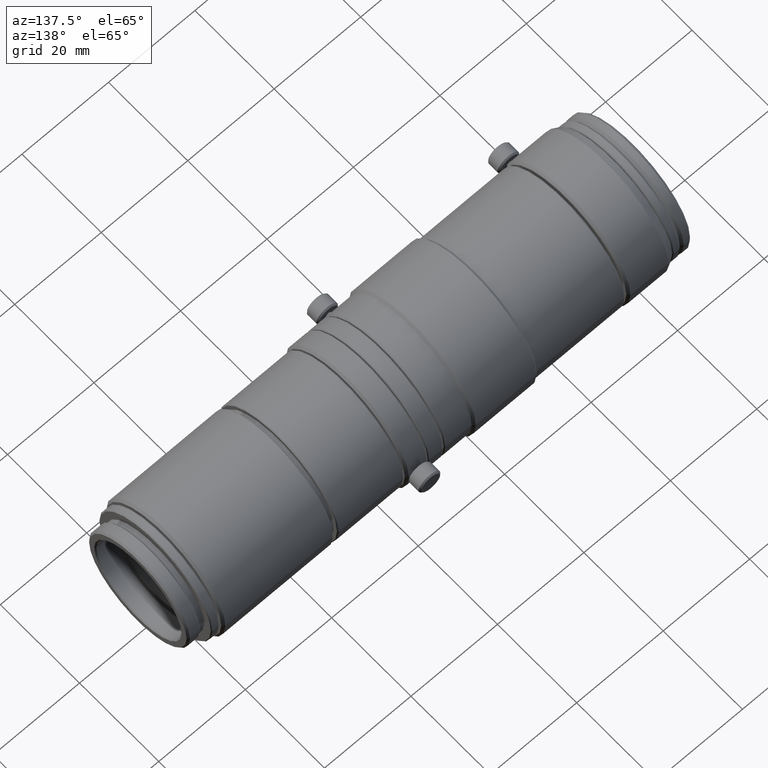
[diagram: clean part render]
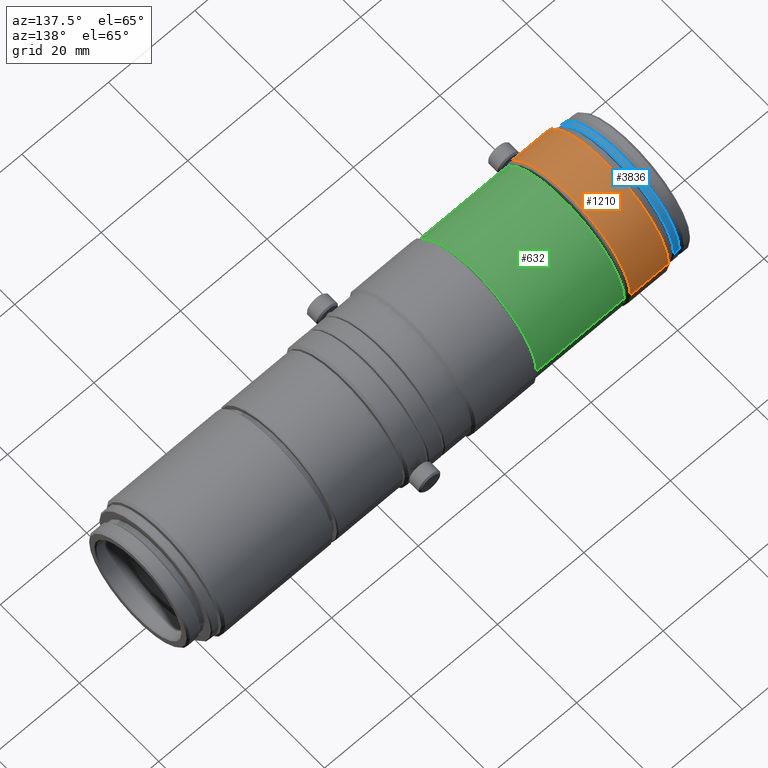
[diagram: same view with three faces highlighted in distinct colors, each labeled with its STEP entity id]
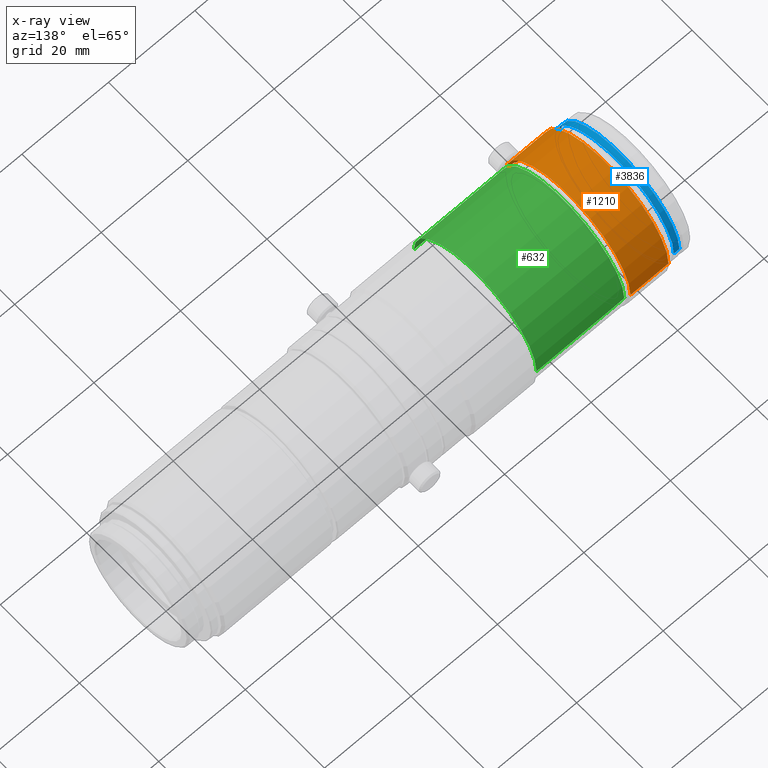
[diagram: x-ray of the same camera — body ghosted, the three highlighted faces saturated]
A machine part, auxiliary view with three faces highlighted in distinct colors.
The next image is the same camera in x-ray (body ghosted, the three faces saturated) — at least one of them is partly hidden behind the body in this view.
Their STEP definitions:

[orange] entity #1210 — the highlighted cylindrical surface (partial cylindrical patch) has radius 15.7498 mm, axis along (1, -0, -0).
#26 = CARTESIAN_POINT ( 'NONE',  ( -115.3251661184938968, -15.74983351145345445, 0.2180427453938842686 ) ) ;
#257 = CARTESIAN_POINT ( 'NONE',  ( -113.8369406988500572, -15.74155685591960641, 0.5165572595239518172 ) ) ;
#327 = CARTESIAN_POINT ( 'NONE',  ( -121.8000003700525440, 15.74983351145346688, 0.0000000000000000000 ) ) ;
#388 = VERTEX_POINT ( 'NONE', #1414 ) ;
#428 = ORIENTED_EDGE ( 'NONE', *, *, #4538, .F. ) ;
#498 = EDGE_LOOP ( 'NONE', ( #3876, #3645, #760, #2874, #428, #4453 ) ) ;
#705 = CARTESIAN_POINT ( 'NONE',  ( -115.3251661184938968, -15.74983351145345445, 1.928807734452844786E-15 ) ) ;
#760 = ORIENTED_EDGE ( 'NONE', *, *, #1717, .F. ) ;
#778 = CARTESIAN_POINT ( 'NONE',  ( -114.0797827085516190, -15.73258313647092699, 0.7382168284103702849 ) ) ;
#835 = DIRECTION ( 'NONE',  ( 1.000000000000000000, -5.556191259460425289E-17, -0.0000000000000000000 ) ) ;
#858 = CARTESIAN_POINT ( 'NONE',  ( -8.750908729429461153E-16, -15.74983351145346155, 1.928798319690519623E-15 ) ) ;
#946 = CARTESIAN_POINT ( 'NONE',  ( 0.0000000000000000000, 0.0000000000000000000, 0.0000000000000000000 ) ) ;
#1003 = DIRECTION ( 'NONE',  ( 0.0000000000000000000, 1.000000000000000000, 0.0000000000000000000 ) ) ;
#1075 = CARTESIAN_POINT ( 'NONE',  ( -113.0000003700525610, -15.74983351145345445, 1.928798319690519623E-15 ) ) ;
#1119 = CARTESIAN_POINT ( 'NONE',  ( -114.6087750738054467, -15.72698143744401555, 0.8481217583007982785 ) ) ;
#1210 = ADVANCED_FACE ( 'NONE', ( #3695 ), #3720, .T. ) ;
#1232 = CARTESIAN_POINT ( 'NONE',  ( -113.0000003700525610, 6.278496143751109007E-15, 0.0000000000000000000 ) ) ;
#1375 = VECTOR ( 'NONE', #2206, 1000.000000000000000 ) ;
#1391 = CARTESIAN_POINT ( 'NONE',  ( -115.0116004473851774, -15.73558511828442086, 0.6744418630013995219 ) ) ;
#1414 = CARTESIAN_POINT ( 'NONE',  ( -115.3251661184938968, -15.74983351145345445, 1.928807734452844786E-15 ) ) ;
#1460 = CARTESIAN_POINT ( 'NONE',  ( -114.7176613380633512, -15.72823330907139550, 0.8257449136888197483 ) ) ;
#1588 = DIRECTION ( 'NONE',  ( 1.000000000000000000, -5.556191259460425289E-17, -0.0000000000000000000 ) ) ;
#1675 = VERTEX_POINT ( 'NONE', #3469 ) ;
#1717 = EDGE_CURVE ( 'NONE', #1675, #388, #3365, .T. ) ;
#1744 = CARTESIAN_POINT ( 'NONE',  ( -113.0000003700525610, 15.74983351145346688, 0.0000000000000000000 ) ) ;
#1799 = CARTESIAN_POINT ( 'NONE',  ( -115.2391420595946272, -15.74455488316166551, 0.4373419497085153096 ) ) ;
#1968 = EDGE_CURVE ( 'NONE', #3385, #2590, #3704, .T. ) ;
#2094 = DIRECTION ( 'NONE',  ( 1.000000000000000000, -5.556191259460425289E-17, -0.0000000000000000000 ) ) ;
#2187 = CARTESIAN_POINT ( 'NONE',  ( -114.3896160746178907, -15.72699328618693038, 0.8479020148832951964 ) ) ;
#2206 = DIRECTION ( 'NONE',  ( 1.000000000000000000, -5.556191259460425289E-17, -0.0000000000000000000 ) ) ;
#2322 = EDGE_CURVE ( 'NONE', #1675, #3435, #2583, .T. ) ;
#2343 = CARTESIAN_POINT ( 'NONE',  ( -113.7764627192204472, -15.74450452363169006, 0.4220360280902646921 ) ) ;
#2439 = AXIS2_PLACEMENT_3D ( 'NONE', #3084, #2094, #1003 ) ;
#2583 = LINE ( 'NONE', #858, #4224 ) ;
#2590 = VERTEX_POINT ( 'NONE', #1744 ) ;
#2719 = DIRECTION ( 'NONE',  ( 5.556191259460425289E-17, 1.000000000000000000, 0.0000000000000000000 ) ) ;
#2822 = CARTESIAN_POINT ( 'NONE',  ( -114.2798804567708828, -15.72827939003676789, 0.8248415973156261183 ) ) ;
#2874 = ORIENTED_EDGE ( 'NONE', *, *, #2322, .T. ) ;
#2896 = CARTESIAN_POINT ( 'NONE',  ( 8.750908729429461153E-16, 15.74983351145346155, 0.0000000000000000000 ) ) ;
#2920 = DIRECTION ( 'NONE',  ( 0.0000000000000000000, 1.000000000000000000, 0.0000000000000000000 ) ) ;
#2971 = AXIS2_PLACEMENT_3D ( 'NONE', #1232, #835, #2920 ) ;
#2976 = AXIS2_PLACEMENT_3D ( 'NONE', #946, #3045, #2719 ) ;
#3045 = DIRECTION ( 'NONE',  ( 1.000000000000000000, -5.556191259460425289E-17, -0.0000000000000000000 ) ) ;
#3084 = CARTESIAN_POINT ( 'NONE',  ( -121.8000003700525440, 6.767440974583625801E-15, 0.0000000000000000000 ) ) ;
#3122 = CIRCLE ( 'NONE', #2971, 15.74983351145346155 ) ;
#3136 = VERTEX_POINT ( 'NONE', #4000 ) ;
#3148 = CARTESIAN_POINT ( 'NONE',  ( -113.9876966919128449, -15.73561164892149300, 0.6737727249176362898 ) ) ;
#3242 = CARTESIAN_POINT ( 'NONE',  ( -114.9206918331927483, -15.73258661838982952, 0.7381706997212760246 ) ) ;
#3332 = CIRCLE ( 'NONE', #2439, 15.74983351145346155 ) ;
#3365 = B_SPLINE_CURVE_WITH_KNOTS ( 'NONE', 3,
 ( #3815, #3665, #4027, #2343, #257, #3148, #778, #2822, #2187, #1119, #1460, #3242, #1391, #1799, #26, #705 ),
 .UNSPECIFIED., .F., .F.,
 ( 4, 2, 2, 2, 2, 2, 2, 4 ),
 ( 0.001970868733914955470, 0.002298939711831666805, 0.002627010689748378140, 0.002955081667665089909, 0.003283152645581801244, 0.003611223623498512579, 0.003939294601415224348, 0.004595436557248647018 ),
 .UNSPECIFIED. ) ;
#3385 = VERTEX_POINT ( 'NONE', #327 ) ;
#3435 = VERTEX_POINT ( 'NONE', #1075 ) ;
#3469 = CARTESIAN_POINT ( 'NONE',  ( -113.6748338815059753, -15.74983351145346155, -6.446315448853778228E-15 ) ) ;
#3471 = EDGE_CURVE ( 'NONE', #3385, #3136, #3332, .T. ) ;
#3513 = CARTESIAN_POINT ( 'NONE',  ( -8.750908729429461153E-16, -15.74983351145346155, 1.928798319690519623E-15 ) ) ;
#3536 = DIRECTION ( 'NONE',  ( 1.000000000000000000, -5.556191259460425289E-17, -0.0000000000000000000 ) ) ;
#3645 = ORIENTED_EDGE ( 'NONE', *, *, #4432, .T. ) ;
#3665 = CARTESIAN_POINT ( 'NONE',  ( -113.6748338815061032, -15.74983351145345445, 0.1094880609532268845 ) ) ;
#3695 = FACE_OUTER_BOUND ( 'NONE', #498, .T. ) ;
#3704 = LINE ( 'NONE', #2896, #1375 ) ;
#3720 = CYLINDRICAL_SURFACE ( 'NONE', #2976, 15.74983351145346155 ) ;
#3815 = CARTESIAN_POINT ( 'NONE',  ( -113.6748338815059753, -15.74983351145346155, -6.446315448853778228E-15 ) ) ;
#3876 = ORIENTED_EDGE ( 'NONE', *, *, #3471, .T. ) ;
#4000 = CARTESIAN_POINT ( 'NONE',  ( -121.8000003700525440, -15.74983351145345445, 1.928798319690519623E-15 ) ) ;
#4027 = CARTESIAN_POINT ( 'NONE',  ( -113.6958266858026576, -15.74863334053416430, 0.2192829429779992179 ) ) ;
#4196 = LINE ( 'NONE', #3513, #4509 ) ;
#4224 = VECTOR ( 'NONE', #1588, 1000.000000000000000 ) ;
#4432 = EDGE_CURVE ( 'NONE', #3136, #388, #4196, .T. ) ;
#4453 = ORIENTED_EDGE ( 'NONE', *, *, #1968, .F. ) ;
#4509 = VECTOR ( 'NONE', #3536, 1000.000000000000000 ) ;
#4538 = EDGE_CURVE ( 'NONE', #2590, #3435, #3122, .T. ) ;

[blue] entity #3836 — the highlighted cylindrical surface (partial cylindrical patch) has radius 14.9998 mm, axis along (1, -0, -0).
#41 = FACE_OUTER_BOUND ( 'NONE', #3653, .T. ) ;
#109 = VECTOR ( 'NONE', #927, 1000.000000000000000 ) ;
#234 = CIRCLE ( 'NONE', #3391, 14.99983351145345267 ) ;
#367 = EDGE_CURVE ( 'NONE', #1892, #3506, #234, .T. ) ;
#536 = CARTESIAN_POINT ( 'NONE',  ( -125.0000003700525468, 14.99983351145345978, 0.0000000000000000000 ) ) ;
#573 = EDGE_CURVE ( 'NONE', #3506, #3917, #3165, .T. ) ;
#582 = ORIENTED_EDGE ( 'NONE', *, *, #573, .T. ) ;
#731 = DIRECTION ( 'NONE',  ( 1.000000000000000000, -5.556191259460425289E-17, -0.0000000000000000000 ) ) ;
#927 = DIRECTION ( 'NONE',  ( 1.000000000000000000, -5.556191259460425289E-17, -0.0000000000000000000 ) ) ;
#1064 = ORIENTED_EDGE ( 'NONE', *, *, #367, .T. ) ;
#1066 = CIRCLE ( 'NONE', #1142, 14.99983351145345978 ) ;
#1131 = DIRECTION ( 'NONE',  ( 1.000000000000000000, -5.556191259460425289E-17, -0.0000000000000000000 ) ) ;
#1142 = AXIS2_PLACEMENT_3D ( 'NONE', #2275, #1600, #3036 ) ;
#1440 = CARTESIAN_POINT ( 'NONE',  ( -125.0000003700525468, -14.99983351145344557, 1.836949809754467473E-15 ) ) ;
#1464 = CARTESIAN_POINT ( 'NONE',  ( -125.0000003700525468, 6.945239094886359252E-15, 0.0000000000000000000 ) ) ;
#1600 = DIRECTION ( 'NONE',  ( 1.000000000000000000, -5.556191259460425289E-17, -0.0000000000000000000 ) ) ;
#1693 = ORIENTED_EDGE ( 'NONE', *, *, #3331, .F. ) ;
#1892 = VERTEX_POINT ( 'NONE', #536 ) ;
#2039 = LINE ( 'NONE', #4117, #109 ) ;
#2275 = CARTESIAN_POINT ( 'NONE',  ( -123.7000003700525497, 6.873008608513373763E-15, 0.0000000000000000000 ) ) ;
#2414 = CARTESIAN_POINT ( 'NONE',  ( 0.0000000000000000000, 0.0000000000000000000, 0.0000000000000000000 ) ) ;
#2482 = EDGE_CURVE ( 'NONE', #1892, #3812, #2039, .T. ) ;
#2769 = ORIENTED_EDGE ( 'NONE', *, *, #2482, .F. ) ;
#3036 = DIRECTION ( 'NONE',  ( 0.0000000000000000000, 1.000000000000000000, 0.0000000000000000000 ) ) ;
#3165 = LINE ( 'NONE', #3257, #4348 ) ;
#3187 = DIRECTION ( 'NONE',  ( 5.556191259460425289E-17, 1.000000000000000000, 0.0000000000000000000 ) ) ;
#3215 = CARTESIAN_POINT ( 'NONE',  ( -123.7000003700525497, -14.99983351145345267, 0.0000000000000000000 ) ) ;
#3227 = AXIS2_PLACEMENT_3D ( 'NONE', #2414, #1131, #3187 ) ;
#3257 = CARTESIAN_POINT ( 'NONE',  ( -8.334194384969927284E-16, -14.99983351145345623, 1.836949809754467867E-15 ) ) ;
#3303 = DIRECTION ( 'NONE',  ( 1.000000000000000000, -5.556191259460425289E-17, -0.0000000000000000000 ) ) ;
#3331 = EDGE_CURVE ( 'NONE', #3812, #3917, #1066, .T. ) ;
#3391 = AXIS2_PLACEMENT_3D ( 'NONE', #1464, #731, #4530 ) ;
#3506 = VERTEX_POINT ( 'NONE', #1440 ) ;
#3526 = CARTESIAN_POINT ( 'NONE',  ( -123.7000003700525497, 14.99983351145346688, 1.836949809754468656E-15 ) ) ;
#3653 = EDGE_LOOP ( 'NONE', ( #1064, #582, #1693, #2769 ) ) ;
#3812 = VERTEX_POINT ( 'NONE', #3526 ) ;
#3836 = ADVANCED_FACE ( 'NONE', ( #41 ), #3852, .T. ) ;
#3852 = CYLINDRICAL_SURFACE ( 'NONE', #3227, 14.99983351145345623 ) ;
#3917 = VERTEX_POINT ( 'NONE', #3215 ) ;
#4117 = CARTESIAN_POINT ( 'NONE',  ( 8.334194384969927284E-16, 14.99983351145345623, 0.0000000000000000000 ) ) ;
#4348 = VECTOR ( 'NONE', #3303, 1000.000000000000000 ) ;
#4530 = DIRECTION ( 'NONE',  ( 0.0000000000000000000, 1.000000000000000000, 0.0000000000000000000 ) ) ;

[green] entity #632 — the highlighted cylindrical surface (partial cylindrical patch) has radius 15.4998 mm, axis along (1, -0, -0).
#22 = ORIENTED_EDGE ( 'NONE', *, *, #1445, .T. ) ;
#290 = CIRCLE ( 'NONE', #1614, 15.49983351145345978 ) ;
#632 = ADVANCED_FACE ( 'NONE', ( #2577 ), #3985, .T. ) ;
#733 = DIRECTION ( 'NONE',  ( 1.000000000000000000, -5.556191259460425289E-17, -0.0000000000000000000 ) ) ;
#740 = DIRECTION ( 'NONE',  ( 1.000000000000000000, -5.556191259460425289E-17, -0.0000000000000000000 ) ) ;
#851 = CARTESIAN_POINT ( 'NONE',  ( -8.612003947942950521E-16, -15.49983351145345978, 1.898182149711835836E-15 ) ) ;
#1083 = ORIENTED_EDGE ( 'NONE', *, *, #3076, .F. ) ;
#1220 = DIRECTION ( 'NONE',  ( 5.556191259460425289E-17, 1.000000000000000000, 0.0000000000000000000 ) ) ;
#1351 = AXIS2_PLACEMENT_3D ( 'NONE', #2241, #1899, #1220 ) ;
#1407 = VERTEX_POINT ( 'NONE', #3824 ) ;
#1416 = DIRECTION ( 'NONE',  ( 1.000000000000000000, -5.556191259460425289E-17, -0.0000000000000000000 ) ) ;
#1435 = EDGE_LOOP ( 'NONE', ( #2789, #22, #1503, #1083 ) ) ;
#1445 = EDGE_CURVE ( 'NONE', #1407, #3763, #1554, .T. ) ;
#1503 = ORIENTED_EDGE ( 'NONE', *, *, #3794, .F. ) ;
#1554 = LINE ( 'NONE', #851, #2726 ) ;
#1614 = AXIS2_PLACEMENT_3D ( 'NONE', #3497, #1416, #3545 ) ;
#1653 = CARTESIAN_POINT ( 'NONE',  ( -91.50000037005251841, -15.49983351145345623, 1.928798319690520411E-15 ) ) ;
#1868 = AXIS2_PLACEMENT_3D ( 'NONE', #3505, #740, #3159 ) ;
#1899 = DIRECTION ( 'NONE',  ( 1.000000000000000000, -5.556191259460425289E-17, -0.0000000000000000000 ) ) ;
#2214 = DIRECTION ( 'NONE',  ( 1.000000000000000000, -5.556191259460425289E-17, -0.0000000000000000000 ) ) ;
#2241 = CARTESIAN_POINT ( 'NONE',  ( 0.0000000000000000000, 0.0000000000000000000, 0.0000000000000000000 ) ) ;
#2277 = VERTEX_POINT ( 'NONE', #3558 ) ;
#2496 = VERTEX_POINT ( 'NONE', #4444 ) ;
#2577 = FACE_OUTER_BOUND ( 'NONE', #1435, .T. ) ;
#2726 = VECTOR ( 'NONE', #2214, 1000.000000000000000 ) ;
#2789 = ORIENTED_EDGE ( 'NONE', *, *, #4068, .T. ) ;
#3076 = EDGE_CURVE ( 'NONE', #2496, #2277, #3429, .T. ) ;
#3110 = CARTESIAN_POINT ( 'NONE',  ( 8.612003947942950521E-16, 15.49983351145345978, 0.0000000000000000000 ) ) ;
#3159 = DIRECTION ( 'NONE',  ( 0.0000000000000000000, 1.000000000000000000, 0.0000000000000000000 ) ) ;
#3162 = VECTOR ( 'NONE', #733, 1000.000000000000000 ) ;
#3429 = LINE ( 'NONE', #3110, #3162 ) ;
#3497 = CARTESIAN_POINT ( 'NONE',  ( -111.8000003700525298, 6.211821848637581694E-15, 0.0000000000000000000 ) ) ;
#3505 = CARTESIAN_POINT ( 'NONE',  ( -91.50000037005251841, 5.083915022967114217E-15, 0.0000000000000000000 ) ) ;
#3545 = DIRECTION ( 'NONE',  ( 0.0000000000000000000, 1.000000000000000000, 0.0000000000000000000 ) ) ;
#3558 = CARTESIAN_POINT ( 'NONE',  ( -91.50000037005251841, 15.49983351145346688, 0.0000000000000000000 ) ) ;
#3763 = VERTEX_POINT ( 'NONE', #1653 ) ;
#3794 = EDGE_CURVE ( 'NONE', #2277, #3763, #3845, .T. ) ;
#3824 = CARTESIAN_POINT ( 'NONE',  ( -111.8000003700525298, -15.49983351145345267, 1.898182149711835836E-15 ) ) ;
#3845 = CIRCLE ( 'NONE', #1868, 15.49983351145346155 ) ;
#3985 = CYLINDRICAL_SURFACE ( 'NONE', #1351, 15.49983351145345978 ) ;
#4068 = EDGE_CURVE ( 'NONE', #2496, #1407, #290, .T. ) ;
#4444 = CARTESIAN_POINT ( 'NONE',  ( -111.8000003700525298, 15.49983351145346688, 0.0000000000000000000 ) ) ;